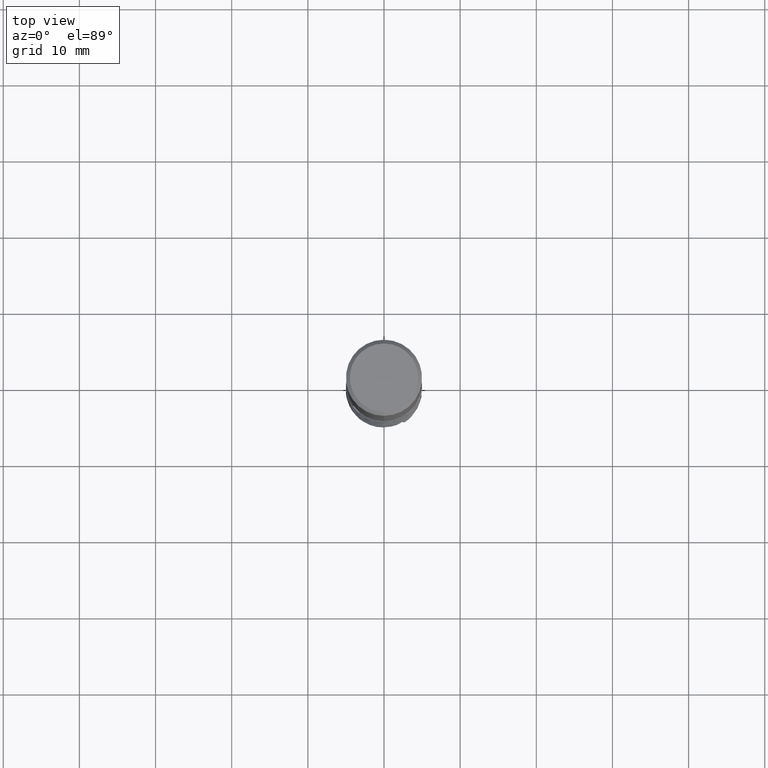
[diagram: clean part render]
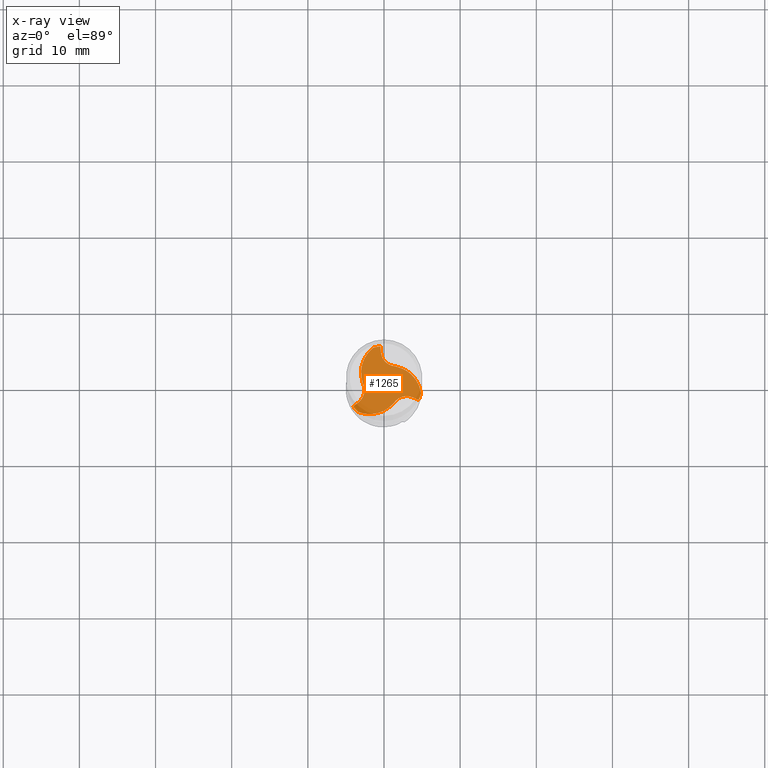
[diagram: x-ray — body ghosted, one internal face saturated and labeled with its STEP entity id]
A machine part, top view, then the same camera in x-ray: the body is ghosted and one INTERNAL B-rep face — a face not visible from any outside direction — is saturated and labeled: STEP entity #1265.
In plain terms, the highlighted planar face has unit normal (-0, 0, 1).
Its self-contained STEP definition (entity closure, byte-faithful):
#511=EDGE_CURVE('',#1293,#949,#1463,.T.);
#551=VERTEX_POINT('',#1505);
#569=EDGE_CURVE('',#995,#881,#1525,.T.);
#641=VERTEX_POINT('',#1606);
#665=VERTEX_POINT('',#1631);
#699=EDGE_CURVE('',#1101,#1399,#1669,.T.);
#707=EDGE_CURVE('',#1059,#835,#1678,.T.);
#751=VERTEX_POINT('',#1726);
#803=EDGE_CURVE('',#1155,#551,#1781,.T.);
#835=VERTEX_POINT('',#1815);
#843=EDGE_CURVE('',#881,#1155,#1825,.T.);
#853=VERTEX_POINT('',#1835);
#869=VERTEX_POINT('',#1853);
#881=VERTEX_POINT('',#1865);
#911=EDGE_CURVE('',#949,#955,#1901,.T.);
#919=EDGE_CURVE('',#751,#665,#1910,.T.);
#949=VERTEX_POINT('',#1942);
#955=VERTEX_POINT('',#1949);
#981=EDGE_CURVE('',#853,#1165,#1978,.T.);
#987=VERTEX_POINT('',#1984);
#995=VERTEX_POINT('',#1993);
#1017=VERTEX_POINT('',#2016);
#1029=EDGE_CURVE('',#987,#641,#2028,.T.);
#1059=VERTEX_POINT('',#2062);
#1085=VERTEX_POINT('',#2089);
#1101=VERTEX_POINT('',#2106);
#1115=EDGE_CURVE('',#1101,#1309,#2121,.T.);
#1125=EDGE_CURVE('',#1059,#751,#2131,.T.);
#1141=EDGE_CURVE('',#665,#1293,#2147,.T.);
#1155=VERTEX_POINT('',#2162);
#1157=EDGE_CURVE('',#551,#853,#2164,.T.);
#1161=EDGE_CURVE('',#1165,#835,#2168,.T.);
#1165=VERTEX_POINT('',#2172);
#1249=EDGE_CURVE('',#995,#641,#2263,.T.);
#1265=ADVANCED_FACE('',(#2281),#2282,.T.);
#1293=VERTEX_POINT('',#2316);
#1297=EDGE_CURVE('',#869,#987,#2321,.T.);
#1309=VERTEX_POINT('',#2335);
#1337=EDGE_CURVE('',#1309,#1017,#2364,.T.);
#1353=EDGE_CURVE('',#1085,#869,#2384,.T.);
#1379=EDGE_CURVE('',#955,#1399,#2413,.T.);
#1389=EDGE_CURVE('',#1017,#1085,#2424,.T.);
#1399=VERTEX_POINT('',#2436);
#1463=B_SPLINE_CURVE_WITH_KNOTS('',3,(#2517,#2518,#2519,#2520,#2521,#2522),.UNSPECIFIED.,.F.,.F.,(4,2,4),(0.0,0.0485817949251289,0.0971631607565392),.UNSPECIFIED.);
#1505=CARTESIAN_POINT('',(1.61475112588291,2.31959466890737,-50.0));
#1525=B_SPLINE_CURVE_WITH_KNOTS('',3,(#3531,#3532,#3533,#3534,#3535,#3536,#3537,#3538,#3539,#3540),.UNSPECIFIED.,.F.,.F.,(4,2,2,2,4),(0.0,1.61492595356725,3.22980815200135,4.45684369186639,5.68386404387973),.UNSPECIFIED.);
#1606=CARTESIAN_POINT('',(4.55042883347483,-2.07185845112085,-50.0));
#1631=CARTESIAN_POINT('',(-2.81385071168681,0.267183750781648,-50.0));
#1669=CIRCLE('',#5101,4.9999);
#1678=CIRCLE('',#5492,4.9999);
#1726=CARTESIAN_POINT('',(-2.97959346343229,1.01154177168786,-50.0));
#1781=B_SPLINE_CURVE_WITH_KNOTS('',3,(#6629,#6630,#6631,#6632,#6633,#6634),.UNSPECIFIED.,.F.,.F.,(4,2,4),(0.0,0.0525791969173922,0.105158418638776),.UNSPECIFIED.);
#1815=CARTESIAN_POINT('',(-0.480932365021297,4.97671619346282,-50.0));
#1825=B_SPLINE_CURVE_WITH_KNOTS('',3,(#7329,#7330,#7331,#7332,#7333,#7334,#7335,#7336,#7337,#7338),.UNSPECIFIED.,.F.,.F.,(4,2,2,2,4),(0.0,1.61492595356725,3.22980815200135,4.45684369186639,5.68386404387973),.UNSPECIFIED.);
#1835=CARTESIAN_POINT('',(1.58414872708262,2.34026647786029,-49.9999999999975));
#1853=CARTESIAN_POINT('',(1.23465585791082,-2.54204627995649,-49.9999999999975));
#1865=CARTESIAN_POINT('',(2.36581760282713,2.07463274650546,-50.0));
#1901=B_SPLINE_CURVE_WITH_KNOTS('',3,(#8127,#8128,#8129,#8130,#8131,#8132,#8133,#8134,#8135,#8136),.UNSPECIFIED.,.F.,.F.,(4,2,2,2,4),(0.0,0.794402574972171,1.58878872050025,2.27127050473759,2.95374711721477),.UNSPECIFIED.);
#1910=B_SPLINE_CURVE_WITH_KNOTS('',3,(#8147,#8148,#8149,#8150,#8151,#8152,#8153,#8154,#8155,#8156),.UNSPECIFIED.,.F.,.F.,(4,2,2,2,4),(0.0,1.61492219268191,3.22980193658364,4.39252360379466,5.55523179766851),.UNSPECIFIED.);
#1942=CARTESIAN_POINT('',(-2.81880458499346,0.20177980209619,-49.9999999999975));
#1949=CARTESIAN_POINT('',(-3.40889538492239,-2.42753285272648,-50.0));
#1978=B_SPLINE_CURVE_WITH_KNOTS('',3,(#9342,#9343,#9344,#9345,#9346,#9347,#9348,#9349,#9350,#9351),.UNSPECIFIED.,.F.,.F.,(4,2,2,2,4),(0.0,0.794402574972145,1.58878872050008,2.27127050473731,2.95374711721443),.UNSPECIFIED.);
#1984=CARTESIAN_POINT('',(3.80675281144363,-1.7384235758231,-50.0));
#1993=CARTESIAN_POINT('',(4.86204907609834,-1.16596689130146,-50.0));
#2016=CARTESIAN_POINT('',(1.17553744018809,-2.57045807416853,-50.0));
#2028=B_SPLINE_CURVE_WITH_KNOTS('',3,(#9695,#9696,#9697,#9698,#9699,#9700),.UNSPECIFIED.,.F.,.F.,(4,2,4),(0.0,0.508333322276597,1.0166666445539),.UNSPECIFIED.);
#2062=CARTESIAN_POINT('',(-1.42126759021055,4.79364145999855,-50.0));
#2089=CARTESIAN_POINT('',(1.20145234681787,-2.55821283025656,-50.0));
#2106=CARTESIAN_POINT('',(-3.4407814858878,-3.6276745686971,-50.0));
#2121=B_SPLINE_CURVE_WITH_KNOTS('',3,(#11482,#11483,#11484,#11485,#11486,#11487,#11488,#11489,#11490,#11491),.UNSPECIFIED.,.F.,.F.,(4,2,2,2,4),(0.0,1.61492595356734,3.22980815200157,4.45274997713796,5.67567670573266),.UNSPECIFIED.);
#2131=B_SPLINE_CURVE_WITH_KNOTS('',3,(#11538,#11539,#11540,#11541,#11542,#11543,#11544,#11545,#11546,#11547),.UNSPECIFIED.,.F.,.F.,(4,2,2,2,4),(0.0,1.61492219268191,3.22980193658364,4.39252360379466,5.55523179766851),.UNSPECIFIED.);
#2147=B_SPLINE_CURVE_WITH_KNOTS('',3,(#11573,#11574,#11575,#11576,#11577,#11578),.UNSPECIFIED.,.F.,.F.,(4,2,4),(0.0,0.0485817949251289,0.0971631607565392),.UNSPECIFIED.);
#2162=CARTESIAN_POINT('',(1.63831327149872,2.30327432338688,-50.0));
#2164=B_SPLINE_CURVE_WITH_KNOTS('',3,(#11610,#11611,#11612,#11613,#11614,#11615),.UNSPECIFIED.,.F.,.F.,(4,2,4),(0.0,0.0525791969173922,0.105158418638776),.UNSPECIFIED.);
#2168=B_SPLINE_CURVE_WITH_KNOTS('',3,(#11622,#11623,#11624,#11625),.UNSPECIFIED.,.F.,.F.,(4,4),(0.0,0.888571794568144),.UNSPECIFIED.);
#2172=CARTESIAN_POINT('',(-0.397857426521244,4.16595642854956,-50.0));
#2263=CIRCLE('',#12023,4.9999);
#2281=FACE_OUTER_BOUND('',#12056,.T.);
#2282=PLANE('',#12057);
#2316=CARTESIAN_POINT('',(-2.81620347269874,0.238618161343267,-50.0));
#2321=B_SPLINE_CURVE_WITH_KNOTS('',3,(#12456,#12457,#12458,#12459,#12460,#12461,#12462,#12463,#12464,#12465),.UNSPECIFIED.,.F.,.F.,(4,2,2,2,4),(0.0,0.794402574972134,1.58878872050005,2.27127050473714,2.95374711721419),.UNSPECIFIED.);
#2335=CARTESIAN_POINT('',(0.613775860528171,-3.08617451806333,-50.0));
#2364=B_SPLINE_CURVE_WITH_KNOTS('',3,(#13167,#13168,#13169,#13170,#13171,#13172,#13173,#13174,#13175,#13176),.UNSPECIFIED.,.F.,.F.,(4,2,2,2,4),(0.0,1.61492595356734,3.22980815200157,4.45274997713796,5.67567670573266),.UNSPECIFIED.);
#2384=B_SPLINE_CURVE_WITH_KNOTS('',3,(#13809,#13810,#13811,#13812,#13813,#13814),.UNSPECIFIED.,.F.,.F.,(4,2,4),(0.0,0.0485817949505292,0.0971631608072277),.UNSPECIFIED.);
#2413=B_SPLINE_CURVE_WITH_KNOTS('',3,(#14289,#14290,#14291,#14292,#14293,#14294),.UNSPECIFIED.,.F.,.F.,(4,2,4),(0.0,0.508333322276597,1.0166666445539),.UNSPECIFIED.);
#2424=B_SPLINE_CURVE_WITH_KNOTS('',3,(#14320,#14321,#14322,#14323,#14324,#14325),.UNSPECIFIED.,.F.,.F.,(4,2,4),(0.0,0.0485817949505292,0.0971631608072277),.UNSPECIFIED.);
#2436=CARTESIAN_POINT('',(-4.06949646845353,-2.90485774234199,-50.0));
#2517=CARTESIAN_POINT('',(-2.81092178187597,0.298617645665095,-50.0));
#2518=CARTESIAN_POINT('',(-2.81251485085413,0.282502263161189,-50.0));
#2519=CARTESIAN_POINT('',(-2.81396840408148,0.266373393629161,-49.9999999998834));
#2520=CARTESIAN_POINT('',(-2.81659614071827,0.234092448173414,-49.9999999998834));
#2521=CARTESIAN_POINT('',(-2.81777030183218,0.217940676678877,-49.999999720509));
#2522=CARTESIAN_POINT('',(-2.81880459647658,0.201779649952283,-49.999999720509));
#3531=CARTESIAN_POINT('',(4.90181177574384,-1.73269234823375,-50.0));
#3532=CARTESIAN_POINT('',(4.90112234517832,-1.19438413853367,-50.0));
#3533=CARTESIAN_POINT('',(4.79529690716663,-0.661357333609052,-50.0));
#3534=CARTESIAN_POINT('',(4.38528751564702,0.334114843284718,-50.0));
#3535=CARTESIAN_POINT('',(4.08502913675543,0.787044042711245,-50.0));
#3536=CARTESIAN_POINT('',(3.41872933230165,1.46041771162271,-50.0));
#3537=CARTESIAN_POINT('',(3.08948316786268,1.70685659784372,-50.0));
#3538=CARTESIAN_POINT('',(2.36941811548613,2.09500623000566,-50.0));
#3539=CARTESIAN_POINT('',(1.98257089872158,2.23457777336237,-50.0));
#3540=CARTESIAN_POINT('',(1.5815651302156,2.31508119378806,-50.0));
#5101=AXIS2_PLACEMENT_3D('',#15305,#15306,#15307);
#5492=AXIS2_PLACEMENT_3D('',#15314,#15315,#15316);
#6629=CARTESIAN_POINT('',(1.67056146183429,2.2803525655588,-50.0));
#6630=CARTESIAN_POINT('',(1.65634800662026,2.29060694763773,-50.0));
#6631=CARTESIAN_POINT('',(1.6420388037524,2.30072795831646,-49.9999999998526));
#6632=CARTESIAN_POINT('',(1.61323266301448,2.32070057706553,-49.9999999998526));
#6633=CARTESIAN_POINT('',(1.59873635713426,2.33055174676207,-50.0));
#6634=CARTESIAN_POINT('',(1.58414872708489,2.34026647785874,-50.0));
#7329=CARTESIAN_POINT('',(4.90181177574384,-1.73269234823375,-50.0));
#7330=CARTESIAN_POINT('',(4.90112234517832,-1.19438413853367,-50.0));
#7331=CARTESIAN_POINT('',(4.79529690716663,-0.661357333609052,-50.0));
#7332=CARTESIAN_POINT('',(4.38528751564702,0.334114843284718,-50.0));
#7333=CARTESIAN_POINT('',(4.08502913675543,0.787044042711245,-50.0));
#7334=CARTESIAN_POINT('',(3.41872933230165,1.46041771162271,-50.0));
#7335=CARTESIAN_POINT('',(3.08948316786268,1.70685659784372,-50.0));
#7336=CARTESIAN_POINT('',(2.36941811548613,2.09500623000566,-50.0));
#7337=CARTESIAN_POINT('',(1.98257089872158,2.23457777336237,-50.0));
#7338=CARTESIAN_POINT('',(1.5815651302156,2.31508119378806,-50.0));
#8127=CARTESIAN_POINT('',(-2.81880458508084,0.201779802050665,-50.0));
#8128=CARTESIAN_POINT('',(-2.69104042427618,-0.0301594438372136,-50.0));
#8129=CARTESIAN_POINT('',(-2.6098002070994,-0.28483715282301,-50.0));
#8130=CARTESIAN_POINT('',(-2.54951635757033,-0.810991038137322,-50.0));
#8131=CARTESIAN_POINT('',(-2.5710468227864,-1.07743785989692,-50.0));
#8132=CARTESIAN_POINT('',(-2.70489192126129,-1.5511822537103,-50.0));
#8133=CARTESIAN_POINT('',(-2.803046371758,-1.75818238362317,-50.0));
#8134=CARTESIAN_POINT('',(-3.06377153747239,-2.13105512935504,-50.0));
#8135=CARTESIAN_POINT('',(-3.22450233868893,-2.29429737243268,-50.0));
#8136=CARTESIAN_POINT('',(-3.40889538492239,-2.42753285272648,-50.0));
#8147=CARTESIAN_POINT('',(-1.05316040837504,5.0499,-50.0));
#8148=CARTESIAN_POINT('',(-1.51098989561127,4.76676219806336,-50.0));
#8149=CARTESIAN_POINT('',(-1.90913946906974,4.39690804278659,-50.0));
#8150=CARTESIAN_POINT('',(-2.54124650862159,3.52541001928605,-50.0));
#8151=CARTESIAN_POINT('',(-2.76916441851631,3.03210233342017,-50.0));
#8152=CARTESIAN_POINT('',(-2.98753176537833,2.13235526594987,-50.0));
#8153=CARTESIAN_POINT('',(-3.02552112226507,1.74472498704409,-50.0));
#8154=CARTESIAN_POINT('',(-2.99242484035281,0.970288940066888,-50.0));
#8155=CARTESIAN_POINT('',(-2.92150433332235,0.587317398090074,-50.0));
#8156=CARTESIAN_POINT('',(-2.79829789798063,0.219852969745447,-50.0));
#9342=CARTESIAN_POINT('',(1.5841487270869,2.34026647795873,-50.0));
#9343=CARTESIAN_POINT('',(1.31940136761107,2.34558909195263,-50.0));
#9344=CARTESIAN_POINT('',(1.05822389326336,2.40257185456147,-50.0));
#9345=CARTESIAN_POINT('',(0.572419337516778,2.61344145208852,-50.0));
#9346=CARTESIAN_POINT('',(0.352434853723345,2.76531079280073,-50.0));
#9347=CARTESIAN_POINT('',(0.00908272301791313,3.11809624515874,-50.0));
#9348=CARTESIAN_POINT('',(-0.121107422824949,3.30660055773982,-50.0));
#9349=CARTESIAN_POINT('',(-0.313662110150407,3.71883154752033,-50.0));
#9350=CARTESIAN_POINT('',(-0.37466863901812,3.93964962608329,-50.0));
#9351=CARTESIAN_POINT('',(-0.397857426521244,4.16595642854956,-50.0));
#9695=CARTESIAN_POINT('',(3.80675281148455,-1.73842357573184,-50.0));
#9696=CARTESIAN_POINT('',(3.96136760659018,-1.8077466140274,-50.0));
#9697=CARTESIAN_POINT('',(4.11598237552481,-1.87706971069354,-50.0));
#9698=CARTESIAN_POINT('',(4.42521186105241,-2.01571602076646,-50.0));
#9699=CARTESIAN_POINT('',(4.57982657764539,-2.08503923417327,-50.0));
#9700=CARTESIAN_POINT('',(4.7344412680675,-2.15436250595007,-50.0));
#11482=CARTESIAN_POINT('',(-3.95146147838523,-3.37874734824703,-50.0));
#11483=CARTESIAN_POINT('',(-3.48492817843645,-3.64730438871319,-50.0));
#11484=CARTESIAN_POINT('',(-2.97040070546787,-3.82217027349073,-50.0));
#11485=CARTESIAN_POINT('',(-1.90329181575754,-3.96482781309143,-50.0));
#11486=CARTESIAN_POINT('',(-1.36091443349263,-3.93126102898546,-50.0));
#11487=CARTESIAN_POINT('',(-0.44592574844358,-3.69126151852953,-50.0));
#11488=CARTESIAN_POINT('',(-0.0690758734229346,-3.53007704757025,-50.0));
#11489=CARTESIAN_POINT('',(0.625202755341555,-3.10267381424292,-50.0));
#11490=CARTESIAN_POINT('',(0.938829085259919,-2.83879761311398,-50.0));
#11491=CARTESIAN_POINT('',(1.20875069212951,-2.53332355183958,-50.0));
#11538=CARTESIAN_POINT('',(-1.05316040837504,5.0499,-50.0));
#11539=CARTESIAN_POINT('',(-1.51098989561127,4.76676219806336,-50.0));
#11540=CARTESIAN_POINT('',(-1.90913946906974,4.39690804278659,-50.0));
#11541=CARTESIAN_POINT('',(-2.54124650862159,3.52541001928605,-50.0));
#11542=CARTESIAN_POINT('',(-2.76916441851631,3.03210233342017,-50.0));
#11543=CARTESIAN_POINT('',(-2.98753176537833,2.13235526594987,-50.0));
#11544=CARTESIAN_POINT('',(-3.02552112226507,1.74472498704409,-50.0));
#11545=CARTESIAN_POINT('',(-2.99242484035281,0.970288940066888,-50.0));
#11546=CARTESIAN_POINT('',(-2.92150433332235,0.587317398090074,-50.0));
#11547=CARTESIAN_POINT('',(-2.79829789798063,0.219852969745447,-50.0));
#11573=CARTESIAN_POINT('',(-2.81092178187597,0.298617645665095,-50.0));
#11574=CARTESIAN_POINT('',(-2.81251485085413,0.282502263161189,-50.0));
#11575=CARTESIAN_POINT('',(-2.81396840408148,0.266373393629161,-49.9999999998834));
#11576=CARTESIAN_POINT('',(-2.81659614071827,0.234092448173414,-49.9999999998834));
#11577=CARTESIAN_POINT('',(-2.81777030183218,0.217940676678877,-49.999999720509));
#11578=CARTESIAN_POINT('',(-2.81880459647658,0.201779649952283,-49.999999720509));
#11610=CARTESIAN_POINT('',(1.67056146183429,2.2803525655588,-50.0));
#11611=CARTESIAN_POINT('',(1.65634800662026,2.29060694763773,-50.0));
#11612=CARTESIAN_POINT('',(1.6420388037524,2.30072795831646,-49.9999999998526));
#11613=CARTESIAN_POINT('',(1.61323266301448,2.32070057706553,-49.9999999998526));
#11614=CARTESIAN_POINT('',(1.59873635713426,2.33055174676207,-50.0));
#11615=CARTESIAN_POINT('',(1.58414872708489,2.34026647785874,-50.0));
#11622=CARTESIAN_POINT('',(-0.397857426620724,4.16595642853937,-50.0));
#11623=CARTESIAN_POINT('',(-0.428048857052281,4.46060426576931,-50.0));
#11624=CARTESIAN_POINT('',(-0.458240093041849,4.75525212292303,-50.0));
#11625=CARTESIAN_POINT('',(-0.48843113459093,5.0499,-50.0));
#12023=AXIS2_PLACEMENT_3D('',#15845,#15846,#15847);
#12056=EDGE_LOOP('',(#15889,#15890,#15891,#15892,#15893,#15894,#15895,#15896,#15897,#15898,#15899,#15900,#15901,#15902,#15903,#15904,#15905,#15906,#15907,#15908,#15909));
#12057=AXIS2_PLACEMENT_3D('',#15910,#15911,#15912);
#12456=CARTESIAN_POINT('',(1.23465585799394,-2.5420462800094,-50.0));
#12457=CARTESIAN_POINT('',(1.37163905666511,-2.31542964811544,-50.0));
#12458=CARTESIAN_POINT('',(1.55157631383603,-2.11773470173848,-50.0));
#12459=CARTESIAN_POINT('',(1.97709702005355,-1.80245041395126,-50.0));
#12460=CARTESIAN_POINT('',(2.21861196906304,-1.68787293290385,-50.0));
#12461=CARTESIAN_POINT('',(2.69580919824335,-1.56691399144844,-50.0));
#12462=CARTESIAN_POINT('',(2.92415379458293,-1.54841817411665,-50.0));
#12463=CARTESIAN_POINT('',(3.37743364762284,-1.58777641816529,-50.0));
#12464=CARTESIAN_POINT('',(3.59917097770707,-1.64535225365064,-50.0));
#12465=CARTESIAN_POINT('',(3.80675281144363,-1.7384235758231,-50.0));
#13167=CARTESIAN_POINT('',(-3.95146147838523,-3.37874734824703,-50.0));
#13168=CARTESIAN_POINT('',(-3.48492817843645,-3.64730438871319,-50.0));
#13169=CARTESIAN_POINT('',(-2.97040070546787,-3.82217027349073,-50.0));
#13170=CARTESIAN_POINT('',(-1.90329181575754,-3.96482781309143,-50.0));
#13171=CARTESIAN_POINT('',(-1.36091443349263,-3.93126102898546,-50.0));
#13172=CARTESIAN_POINT('',(-0.44592574844358,-3.69126151852953,-50.0));
#13173=CARTESIAN_POINT('',(-0.0690758734229346,-3.53007704757025,-50.0));
#13174=CARTESIAN_POINT('',(0.625202755341555,-3.10267381424292,-50.0));
#13175=CARTESIAN_POINT('',(0.938829085259919,-2.83879761311398,-50.0));
#13176=CARTESIAN_POINT('',(1.20875069212951,-2.53332355183958,-50.0));
#13809=CARTESIAN_POINT('',(1.14685042372715,-2.58363849400924,-50.0));
#13810=CARTESIAN_POINT('',(1.16160328886415,-2.57696044095913,-50.0));
#13811=CARTESIAN_POINT('',(1.17629807623473,-2.57015482021036,-49.9999999998834));
#13812=CARTESIAN_POINT('',(1.20556806339151,-2.55629003415738,-49.9999999998834));
#13813=CARTESIAN_POINT('',(1.22014298838656,-2.54923100175923,-49.999999720509));
#13814=CARTESIAN_POINT('',(1.23465599541288,-2.5420462138292,-49.999999720509));
#14289=CARTESIAN_POINT('',(-3.40889538486382,-2.42753285280754,-50.0));
#14290=CARTESIAN_POINT('',(-3.54623829464812,-2.52677167402216,-50.0));
#14291=CARTESIAN_POINT('',(-3.68358124189731,-2.62601044338675,-50.0));
#14292=CARTESIAN_POINT('',(-3.95826721132523,-2.82448787841638,-50.0));
#14293=CARTESIAN_POINT('',(-4.09561023350398,-2.92372654408144,-50.0));
#14294=CARTESIAN_POINT('',(-4.23295329314719,-3.02296515789686,-50.0));
#14320=CARTESIAN_POINT('',(1.14685042372715,-2.58363849400924,-50.0));
#14321=CARTESIAN_POINT('',(1.16160328886415,-2.57696044095913,-50.0));
#14322=CARTESIAN_POINT('',(1.17629807623473,-2.57015482021036,-49.9999999998834));
#14323=CARTESIAN_POINT('',(1.20556806339151,-2.55629003415738,-49.9999999998834));
#14324=CARTESIAN_POINT('',(1.22014298838656,-2.54923100175923,-49.999999720509));
#14325=CARTESIAN_POINT('',(1.23465599541288,-2.5420462138292,-49.999999720509));
#15305=CARTESIAN_POINT('',(0.0,0.0,-50.0));
#15306=DIRECTION('',(0.0,0.0,-1.0));
#15307=DIRECTION('',(0.0,1.0,0.0));
#15314=CARTESIAN_POINT('',(0.0,0.0,-50.0));
#15315=DIRECTION('',(0.0,0.0,-1.0));
#15316=DIRECTION('',(0.0,1.0,0.0));
#15845=CARTESIAN_POINT('',(0.0,0.0,-50.0));
#15846=DIRECTION('',(0.0,0.0,-1.0));
#15847=DIRECTION('',(0.0,1.0,0.0));
#15889=ORIENTED_EDGE('',*,*,#1115,.T.);
#15890=ORIENTED_EDGE('',*,*,#1337,.T.);
#15891=ORIENTED_EDGE('',*,*,#1389,.T.);
#15892=ORIENTED_EDGE('',*,*,#1353,.T.);
#15893=ORIENTED_EDGE('',*,*,#1297,.T.);
#15894=ORIENTED_EDGE('',*,*,#1029,.T.);
#15895=ORIENTED_EDGE('',*,*,#1249,.F.);
#15896=ORIENTED_EDGE('',*,*,#569,.T.);
#15897=ORIENTED_EDGE('',*,*,#843,.T.);
#15898=ORIENTED_EDGE('',*,*,#803,.T.);
#15899=ORIENTED_EDGE('',*,*,#1157,.T.);
#15900=ORIENTED_EDGE('',*,*,#981,.T.);
#15901=ORIENTED_EDGE('',*,*,#1161,.T.);
#15902=ORIENTED_EDGE('',*,*,#707,.F.);
#15903=ORIENTED_EDGE('',*,*,#1125,.T.);
#15904=ORIENTED_EDGE('',*,*,#919,.T.);
#15905=ORIENTED_EDGE('',*,*,#1141,.T.);
#15906=ORIENTED_EDGE('',*,*,#511,.T.);
#15907=ORIENTED_EDGE('',*,*,#911,.T.);
#15908=ORIENTED_EDGE('',*,*,#1379,.T.);
#15909=ORIENTED_EDGE('',*,*,#699,.F.);
#15910=CARTESIAN_POINT('',(0.0,2.49995,-50.0));
#15911=DIRECTION('',(-0.0,0.0,1.0));
#15912=DIRECTION('',(0.0,-1.0,0.0));